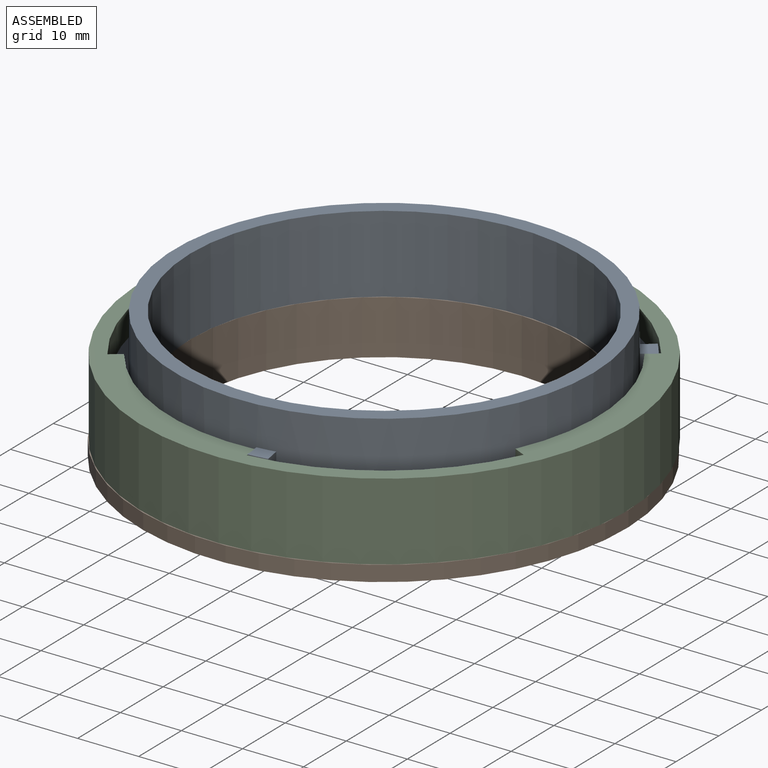
[diagram: assembled view]
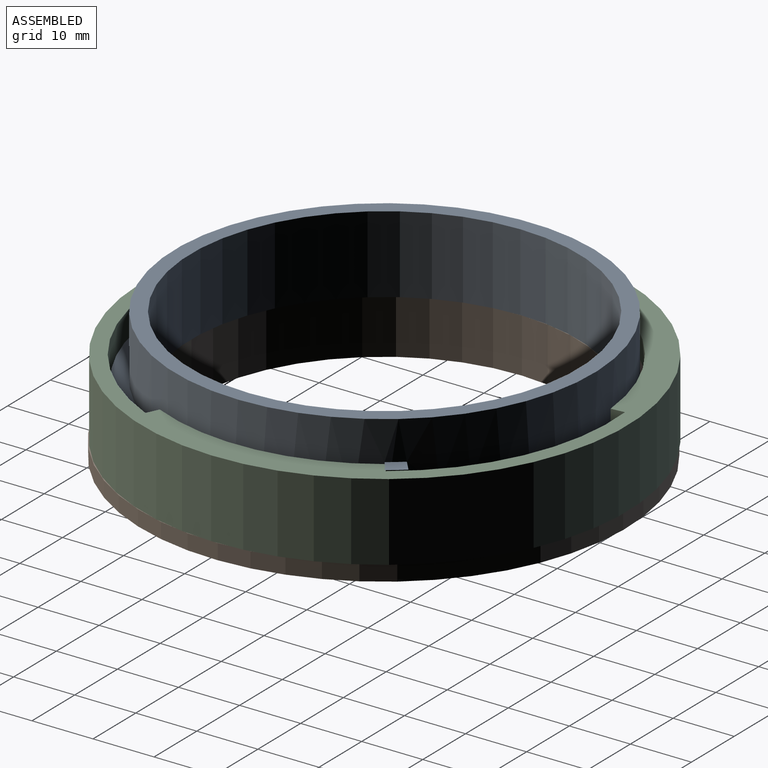
[diagram: assembled view, second angle]
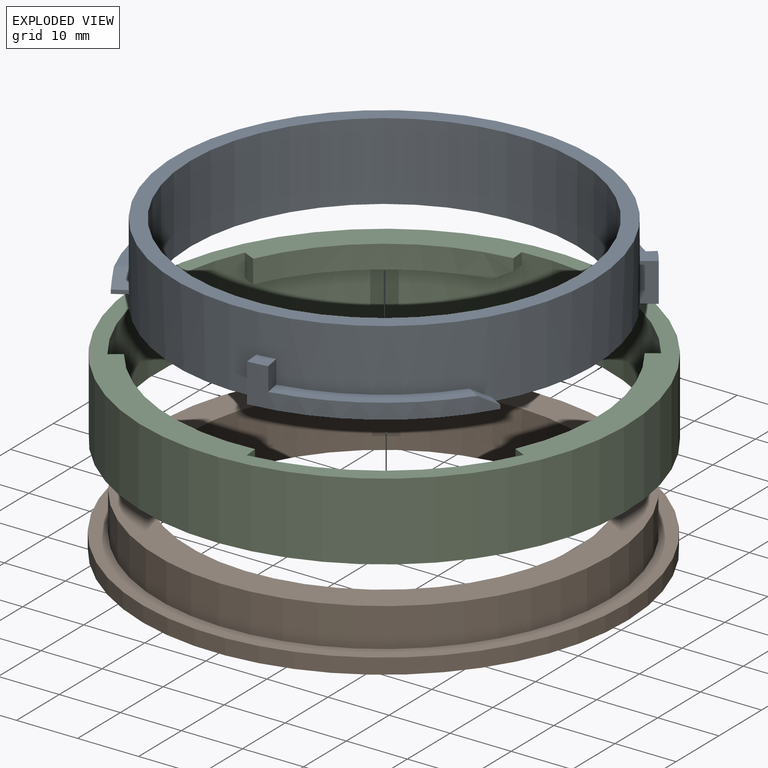
[diagram: exploded view]
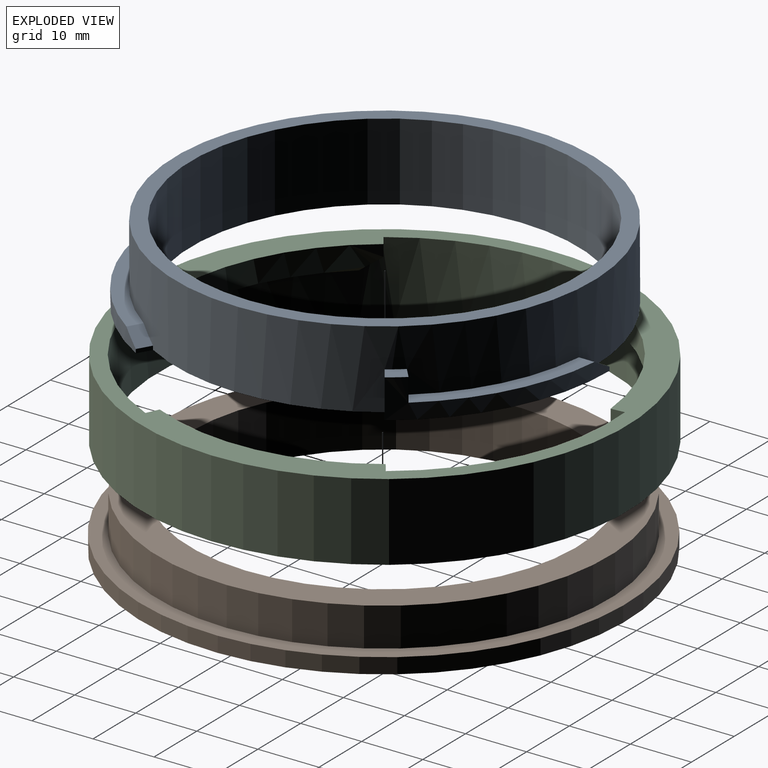
[diagram: exploded view, second angle]
ASSEMBLY  parts=3 mates=3
PART A: 25 faces, bbox 71.1x73.5x12.7 mm
  f0: cylinder r=34.29mm len=68.58mm, axis (0,0,-1), area 2460.6mm2, adj f1,f2,f3,f5,f6,f7,f8,f10
  f1: plane 24.16x16.35mm, normal (0,0,1), area 70.4mm2, adj f0,f21,f22,f24
  f2: plane 28.08x5.62mm, normal (0,0,1), area 70.4mm2, adj f0,f15,f16,f18
  f3: plane 24.91x14.64mm, normal (0,0,1), area 70.4mm2, adj f0,f9,f10,f12
  f4: cylinder r=31.75mm len=63.5mm, axis (0,0,-1), area 2533.5mm2, adj f5,f6
  f5: plane 68.58x68.58mm, normal (0,0,1), area 527mm2, adj f0,f4
  f6: plane 73.52x71.12mm, normal (0,0,-1), area 787.1mm2, adj f0,f4,f7,f8,f9,f13,f14,f15
  f7: plane 2.54x0.64mm, normal (-1,0,0), area 1.6mm2, adj f0,f6,f9,f12
  f8: plane 6.35x2.08mm, normal (0.57,-0.82,0), area 16.1mm2, adj f0,f6,f9,f11
  f9: cylinder r=36.83mm len=30.17mm, axis (0,0,-1), area 98.9mm2, adj f3,f6,f7,f8,f10,f11,f12
  f10: plane 3.81x1.95mm, normal (-0.64,0.77,0), area 9.7mm2, adj f0,f3,f9,f11
  f11: plane 4.01x3.9mm, normal (0,0,1), area 7.9mm2, adj f0,f8,f9,f10
  f12: plane 3.3x2.7mm, normal (-0.5,0,0.87), area 9.7mm2, adj f0,f3,f7,f9
  f13: plane 2.2x1.27mm, normal (0.5,-0.87,0), area 1.6mm2, adj f0,f6,f15,f18
  f14: plane 6.35x2.3mm, normal (0.42,0.91,0), area 16.1mm2, adj f0,f6,f15,f17
  f15: cylinder r=36.83mm len=33.98mm, axis (0,0,-1), area 98.9mm2, adj f2,f6,f13,f14,f16,f17,f18
  f16: plane 3.81x2.39mm, normal (-0.34,-0.94,0), area 9.7mm2, adj f0,f2,f15,f17
  f17: plane 3.84x3.53mm, normal (0,0,1), area 7.9mm2, adj f0,f14,f15,f16
  f18: plane 4.21x3.72mm, normal (0.25,-0.43,0.87), area 9.7mm2, adj f0,f2,f13,f15
  f19: plane 2.2x1.27mm, normal (0.5,0.87,0), area 1.6mm2, adj f0,f6,f21,f24
  f20: plane 6.35x2.53mm, normal (-1,-0.09,0), area 16.1mm2, adj f0,f6,f21,f23
  f21: cylinder r=36.83mm len=28.69mm, axis (0,0,-1), area 98.9mm2, adj f1,f6,f19,f20,f22,f23,f24
  f22: plane 3.81x2.5mm, normal (0.98,0.17,0), area 9.7mm2, adj f0,f1,f21,f23
  f23: plane 3.41x2.92mm, normal (0,0,1), area 7.9mm2, adj f0,f20,f21,f22
  f24: plane 4.06x3.99mm, normal (0.25,0.43,0.87), area 9.7mm2, adj f0,f1,f19,f21
PART B: 6 faces, bbox 79.4x79.4x8.9 mm
  f0: cylinder r=31.75mm len=63.5mm, axis (0,0,-1), area 1773.5mm2, adj f3,f5
  f1: cylinder r=39.69mm len=79.38mm, axis (0,0,-1), area 633.4mm2, adj f2,f3
  f2: plane 79.38x79.38mm, normal (0,0,1), area 657.5mm2, adj f1,f4
  f3: plane 79.38x79.38mm, normal (0,0,-1), area 1781.4mm2, adj f0,f1
  f4: cylinder r=36.96mm len=73.91mm, axis (0,0,-1), area 1474.5mm2, adj f2,f5
  f5: plane 73.91x73.91mm, normal (0,0,1), area 1123.9mm2, adj f0,f4
PART C: 19 faces, bbox 79.4x79.4x12.7 mm
  f0: cylinder r=34.92mm len=30.25mm, axis (0,0,-1), area 136.2mm2, adj f5,f9,f10,f12,f17
  f1: plane 30.39x16.91mm, normal (0,0,1), area 76.5mm2, adj f2,f6,f14,f18
  f2: cylinder r=34.92mm len=30.25mm, axis (0,0,-1), area 136.2mm2, adj f1,f9,f14,f16,f18
  f3: plane 34.22x6.9mm, normal (0,0,1), area 76.5mm2, adj f4,f6,f11,f15
  f4: cylinder r=34.92mm len=34.93mm, axis (0,0,-1), area 136.2mm2, adj f3,f9,f11,f13,f15
  f5: plane 28.87x19.54mm, normal (0,0,1), area 76.5mm2, adj f0,f6,f12,f17
  f6: cylinder r=37.15mm len=74.3mm, axis (0,0,-1), area 2529mm2, adj f1,f3,f5,f8,f9,f10,f11,f12
  f7: cylinder r=39.69mm len=79.38mm, axis (0,0,-1), area 3166.9mm2, adj f8,f9
  f8: plane 79.38x79.38mm, normal (0,0,1), area 613.1mm2, adj f6,f7
  f9: plane 79.38x79.38mm, normal (0,0,-1), area 864.7mm2, adj f0,f2,f4,f6,f7,f10,f11,f13
  f10: plane 2.22x1.91mm, normal (-1,0,0), area 4.2mm2, adj f0,f6,f9,f12
  f11: plane 3.81x1.92mm, normal (0.5,0.87,0), area 8.5mm2, adj f3,f4,f6,f9
  f12: plane 3.3x2.38mm, normal (-0.5,0,0.87), area 8.5mm2, adj f0,f5,f6,f10
  f13: plane 1.92x1.91mm, normal (0.5,-0.87,0), area 4.2mm2, adj f4,f6,f9,f15
  f14: plane 3.81x2.22mm, normal (-1,0,0), area 8.5mm2, adj f1,f2,f6,f9
  f15: plane 4.05x3.45mm, normal (0.25,-0.43,0.87), area 8.5mm2, adj f3,f4,f6,f13
  f16: plane 1.92x1.91mm, normal (0.5,0.87,0), area 4.2mm2, adj f2,f6,f9,f18
  f17: plane 3.81x1.92mm, normal (0.5,-0.87,0), area 8.5mm2, adj f0,f5,f6,f9
  f18: plane 3.9x3.71mm, normal (0.25,0.43,0.87), area 8.5mm2, adj f1,f2,f6,f16
PLACE A t=(1.4,-0.27,-6.45)mm fixed
PLACE B rot(axis=(0,0,1),15.6deg) t=(-220.84,-62.54,-15.34)mm
PLACE C rot(axis=(0.84,0.54,0),180deg) t=(-37.36,-84.28,-0.1)mm
MATE planar A.f2 <-> C.f3  axis (0,0,1) through (-33.25,-1.69,-3.91)mm
MATE planar B.f0 <-> C.f0  axis (0,0,1) through (1.4,-0.44,-12.8)mm
MATE cylindrical C.f6 <-> A.f0  axis (0,0,1) through (1.4,-0.27,-6.45)mm
